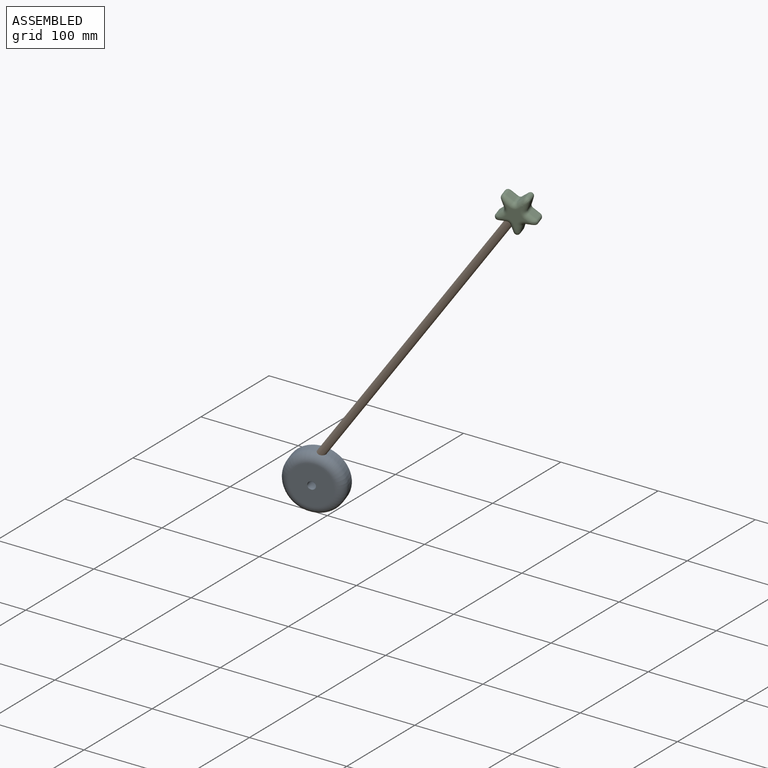
[diagram: assembled view]
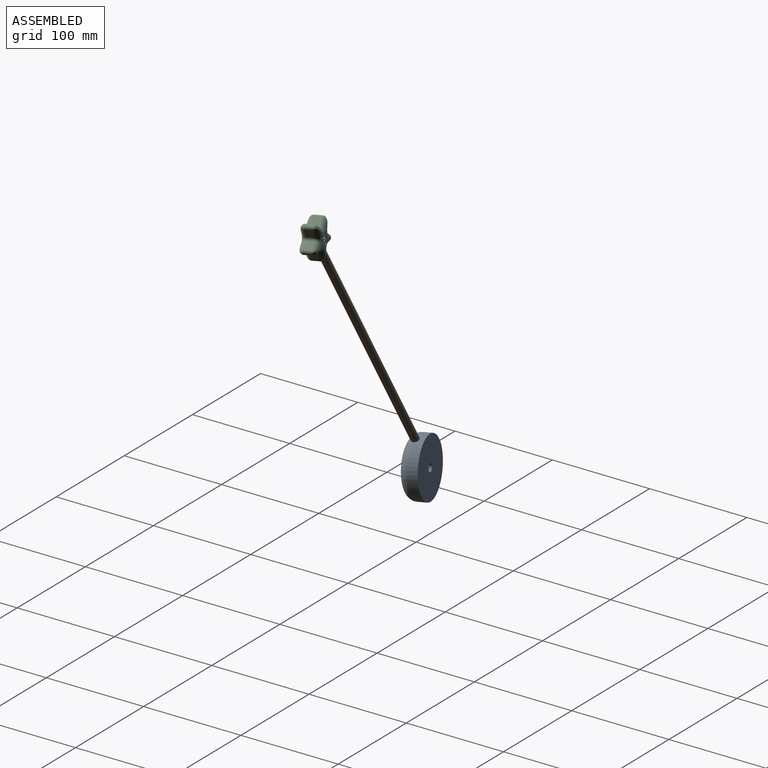
[diagram: assembled view, second angle]
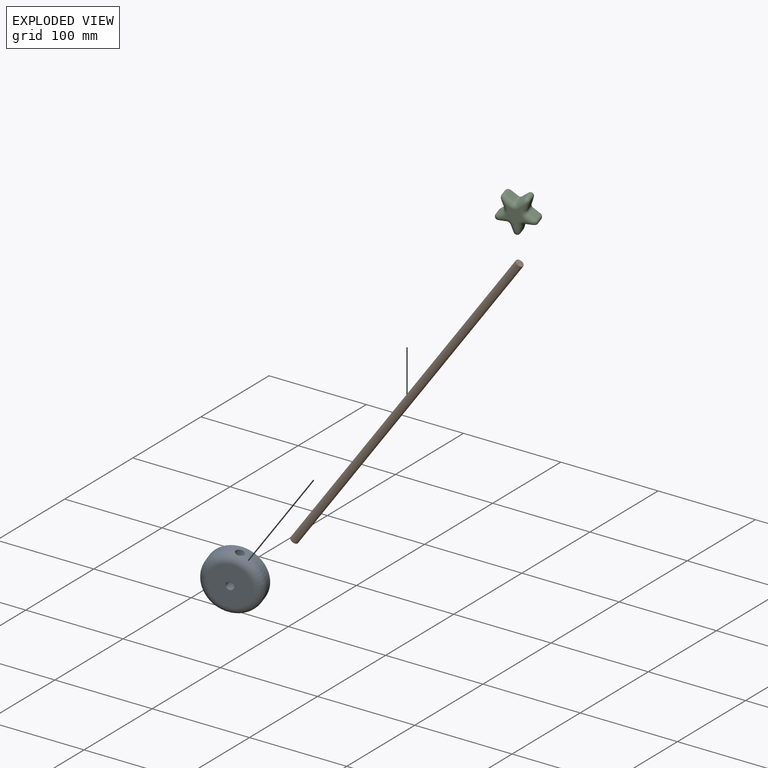
[diagram: exploded view]
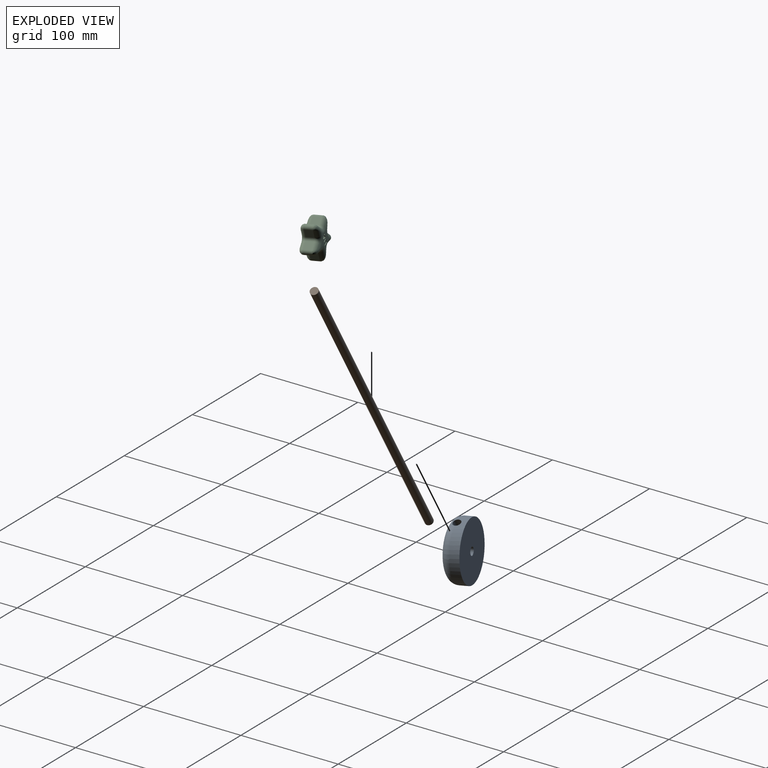
[diagram: exploded view, second angle]
ASSEMBLY  parts=3 mates=2
PART A: 7 faces, bbox 63.9x18x63.9 mm
  f0: cylinder r=29.5mm len=59mm, axis (0,1,0), area 1641mm2, adj f1,f3,f5
  f1: torus R=20.5mm, axis (0,-1,0), area 2302mm2, adj f0,f2,f5
  f2: plane 41x41mm, normal (0,-1,0), area 1270mm2, adj f1,f4
  f3: plane 59x59mm, normal (0,1,0), area 2683.7mm2, adj f0,f4
  f4: cylinder r=4mm len=18mm, axis (0,1,0), area 452.4mm2, adj f2,f3
  f5: cylinder r=4mm len=46.68mm, axis (-1,0,0), area 1130.6mm2, adj f0,f1,f6
  f6: plane 8x8mm, normal (1,0,0), area 50.3mm2, adj f5
PART B: 3 faces, bbox 370x8x8 mm
  f0: cylinder r=4mm len=370mm, axis (-1,0,0), area 9299.1mm2, adj f1,f2
  f1: plane 8x8mm, normal (1,0,0), area 50.3mm2, adj f0
  f2: plane 8x8mm, normal (-1,0,0), area 50.3mm2, adj f0
PART C: 93 faces, bbox 51.5x19.8x48.9 mm
  f0: plane 20.69x19.67mm, normal (0,1,0), area 140.4mm2, adj f46,f47,f48,f49,f50,f51,f54,f55
  f1: cylinder r=3mm len=1.85mm, axis (0,-1,0), area 0.3mm2, adj f4,f29,f65
  f2: cylinder r=3mm len=1.5mm, axis (0,-1,0), area 0.3mm2, adj f5,f29,f65
  f3: cylinder r=3mm len=1.5mm, axis (0,-1,0), area 0.3mm2, adj f5,f48,f65
  f4: plane 8x7.84mm, normal (0.95,0,0.31), area 51.7mm2, adj f1,f15,f17,f31,f50,f65
  f5: plane 8x6.67mm, normal (0.59,0,-0.81), area 51.7mm2, adj f2,f3,f21,f27,f46,f65
  f6: plane 8.24x8mm, normal (0,0,1), area 66mm2, adj f19,f21,f26,f47
  f7: plane 8x7.84mm, normal (0.95,0,0.31), area 66mm2, adj f19,f20,f30,f51
  f8: plane 8x7.84mm, normal (-0.95,0,0.31), area 66mm2, adj f18,f20,f34,f55
  f9: plane 8.24x8mm, normal (0,0,1), area 66mm2, adj f18,f23,f38,f59
  f10: plane 8x6.67mm, normal (-0.59,0,-0.81), area 66mm2, adj f22,f23,f42,f63
  f11: plane 8x7.84mm, normal (-0.95,0,0.31), area 66mm2, adj f22,f24,f43,f62
  f12: plane 8x6.67mm, normal (0.59,0,-0.81), area 66mm2, adj f16,f24,f39,f58
  f13: plane 8x6.67mm, normal (-0.59,0,-0.81), area 66mm2, adj f16,f17,f35,f54
  f14: plane 20.69x19.67mm, normal (0,-1,0), area 164.2mm2, adj f26,f27,f28,f29,f30,f31,f34,f35
  f15: cylinder r=3mm len=1.85mm, axis (0,-1,0), area 0.3mm2, adj f4,f48,f65
  f16: cylinder r=3mm len=8mm, axis (0,-1,0), area 30.2mm2, adj f12,f13,f37,f56
  f17: cylinder r=3mm len=8mm, axis (0,1,0), area 60.3mm2, adj f4,f13,f33,f52
  f18: cylinder r=3mm len=8mm, axis (0,-1,0), area 30.2mm2, adj f8,f9,f36,f57
  f19: cylinder r=3mm len=8mm, axis (0,-1,0), area 30.2mm2, adj f6,f7,f28,f49
  f20: cylinder r=3mm len=8mm, axis (0,1,0), area 60.3mm2, adj f7,f8,f32,f53
  f21: cylinder r=3mm len=8mm, axis (0,1,0), area 60.3mm2, adj f5,f6,f25,f45
  f22: cylinder r=3mm len=8mm, axis (0,-1,0), area 30.2mm2, adj f10,f11,f44,f64
  f23: cylinder r=3mm len=8mm, axis (0,1,0), area 60.3mm2, adj f9,f10,f40,f61
  f24: cylinder r=3mm len=8mm, axis (0,1,0), area 60.3mm2, adj f11,f12,f41,f60
  f25: bspline ~15.39x9.84mm, area 47.5mm2, adj f21,f26,f27
  f26: cylinder r=5mm len=8.24mm, axis (1,0,0), area 47.2mm2, adj f6,f14,f25,f28
  f27: cylinder r=5mm len=9.61mm, axis (-0.81,0,-0.59), area 47.2mm2, adj f5,f14,f25,f29
  f28: torus R=8mm, axis (0,-1,0), area 47.5mm2, adj f14,f19,f26,f30
  f29: torus R=8mm, axis (0,-1,0), area 47.5mm2, adj f1,f2,f14,f27,f31
  f30: cylinder r=5mm len=9.39mm, axis (0.31,0,-0.95), area 47.2mm2, adj f7,f14,f28,f32
  f31: cylinder r=5mm len=9.39mm, axis (0.31,0,-0.95), area 47.2mm2, adj f4,f14,f29,f33
  f32: bspline ~16.18x9.84mm, area 47.5mm2, adj f20,f30,f34
  f33: bspline ~13.09x9.84mm, area 47.5mm2, adj f17,f31,f35
  f34: cylinder r=5mm len=9.39mm, axis (0.31,0,0.95), area 47.2mm2, adj f8,f14,f32,f36
  f35: cylinder r=5mm len=9.61mm, axis (-0.81,0,0.59), area 47.2mm2, adj f13,f14,f33,f37
  f36: torus R=8mm, axis (0,-1,0), area 47.5mm2, adj f14,f18,f34,f38
  f37: torus R=8mm, axis (0,-1,0), area 47.5mm2, adj f14,f16,f35,f39
  f38: cylinder r=5mm len=8.24mm, axis (1,0,0), area 47.2mm2, adj f9,f14,f36,f40
  f39: cylinder r=5mm len=9.61mm, axis (-0.81,0,-0.59), area 47.2mm2, adj f12,f14,f37,f41
  f40: bspline ~15.39x9.84mm, area 47.5mm2, adj f23,f38,f42
  f41: bspline ~13.09x9.84mm, area 47.5mm2, adj f24,f39,f43
  f42: cylinder r=5mm len=9.61mm, axis (-0.81,0,0.59), area 47.2mm2, adj f10,f14,f40,f44
  f43: cylinder r=5mm len=9.39mm, axis (0.31,0,0.95), area 47.2mm2, adj f11,f14,f41,f44
  f44: torus R=8mm, axis (0,-1,0), area 47.5mm2, adj f14,f22,f42,f43
  f45: bspline ~15.39x9.84mm, area 47.5mm2, adj f21,f46,f47
  f46: cylinder r=5mm len=9.61mm, axis (0.81,0,0.59), area 47.2mm2, adj f0,f5,f45,f48
  f47: cylinder r=5mm len=8.24mm, axis (-1,0,0), area 47.2mm2, adj f0,f6,f45,f49
  f48: torus R=8mm, axis (0,-1,0), area 47.5mm2, adj f0,f3,f15,f46,f50
  f49: torus R=8mm, axis (0,-1,0), area 47.5mm2, adj f0,f19,f47,f51
  f50: cylinder r=5mm len=9.39mm, axis (-0.31,0,0.95), area 47.2mm2, adj f0,f4,f48,f52
  f51: cylinder r=5mm len=9.39mm, axis (-0.31,0,0.95), area 47.2mm2, adj f0,f7,f49,f53
  f52: bspline ~13.09x9.84mm, area 47.5mm2, adj f17,f50,f54
  f53: bspline ~16.18x9.84mm, area 47.5mm2, adj f20,f51,f55
  f54: cylinder r=5mm len=9.61mm, axis (0.81,0,-0.59), area 47.2mm2, adj f0,f13,f52,f56
  f55: cylinder r=5mm len=9.39mm, axis (-0.31,0,-0.95), area 47.2mm2, adj f0,f8,f53,f57
  f56: torus R=8mm, axis (0,-1,0), area 47.5mm2, adj f0,f16,f54,f58
  f57: torus R=8mm, axis (0,-1,0), area 47.5mm2, adj f0,f18,f55,f59
  f58: cylinder r=5mm len=9.61mm, axis (0.81,0,0.59), area 47.2mm2, adj f0,f12,f56,f60
  f59: cylinder r=5mm len=8.24mm, axis (-1,0,0), area 47.2mm2, adj f0,f9,f57,f61
  f60: bspline ~13.09x9.84mm, area 47.5mm2, adj f24,f58,f62
  f61: bspline ~15.39x9.84mm, area 47.5mm2, adj f23,f59,f63
  f62: cylinder r=5mm len=9.39mm, axis (-0.31,0,-0.95), area 47.2mm2, adj f0,f11,f60,f64
  f63: cylinder r=5mm len=9.61mm, axis (0.81,0,-0.59), area 47.2mm2, adj f0,f10,f61,f64
  f64: torus R=8mm, axis (0,-1,0), area 47.5mm2, adj f0,f22,f62,f63
  f65: cylinder r=4mm len=17.48mm, axis (0.95,0,-0.31), area 371.8mm2, adj f1,f2,f3,f4,f5,f15,f66
  f66: plane 8x7.61mm, normal (0.95,0,-0.31), area 50.3mm2, adj f65
  f67: extruded ~2x1.78mm, area 3.7mm2, adj f68,f78,f79,f92
  f68: plane 2x1.27mm, normal (0,0,-1), area 2.5mm2, adj f67,f69,f79,f92
  f69: extruded ~2.11x2mm, area 4.4mm2, adj f68,f78,f79,f92
  f70: plane 2x1.16mm, normal (-0.96,0,0.29), area 2.4mm2, adj f0,f71,f77,f79
  f71: plane 2x1.11mm, normal (0,0,1), area 2.2mm2, adj f0,f70,f72,f79
  f72: plane 4.89x2mm, normal (0.94,0,-0.33), area 10.4mm2, adj f0,f71,f73,f79
  f73: plane 2x1.26mm, normal (0,0,-1), area 2.5mm2, adj f0,f72,f74,f79
  f74: plane 4.89x2mm, normal (-0.94,0,-0.33), area 10.4mm2, adj f0,f73,f75,f79
  f75: plane 2x1.11mm, normal (0,0,1), area 2.2mm2, adj f0,f74,f76,f79
  f76: plane 2x1.16mm, normal (0.96,0,0.29), area 2.4mm2, adj f0,f75,f77,f79
  f77: plane 2x1.77mm, normal (0,0,1), area 3.5mm2, adj f0,f70,f76,f79
  f78: extruded ~2x0.33mm, area 0.7mm2, adj f67,f69,f79,f92
  f79: plane 4.89x4.7mm, normal (0,1,0), area 10.8mm2, adj f67,f68,f69,f70,f71,f72,f73,f74
  f80: plane 4.87x2mm, normal (-1,0,0), area 9.7mm2, adj f0,f81,f83,f84
  f81: plane 2x1.03mm, normal (0,0,1), area 2.1mm2, adj f0,f80,f82,f84
  f82: plane 4.87x2mm, normal (1,0,0), area 9.7mm2, adj f0,f81,f83,f84
  f83: plane 2x1.03mm, normal (0,0,-1), area 2.1mm2, adj f0,f80,f82,f84
  f84: plane 4.87x1.03mm, normal (0,1,0), area 5mm2, adj f80,f81,f82,f83
  f85: plane 4.87x2mm, normal (-1,0,0), area 9.7mm2, adj f0,f86,f90,f91
  f86: plane 3.01x2mm, normal (0,0,1), area 6mm2, adj f0,f85,f87,f91
  f87: plane 2x0.85mm, normal (1,0,0), area 1.7mm2, adj f0,f86,f88,f91
  f88: plane 2x1.97mm, normal (0,0,-1), area 3.9mm2, adj f0,f87,f89,f91
  f89: plane 4.01x2mm, normal (1,0,0), area 8mm2, adj f0,f88,f90,f91
  f90: plane 2x1.03mm, normal (0,0,-1), area 2.1mm2, adj f0,f85,f89,f91
  f91: plane 4.87x3.01mm, normal (0,1,0), area 6.7mm2, adj f85,f86,f87,f88,f89,f90
  f92: plane 2.11x1.27mm, normal (0,1,0), area 1.3mm2, adj f67,f68,f69,f78
PLACE A rot(axis=(0.19,-0.96,0.2),56.4deg) t=(430.63,-4.09,-39.93)mm
PLACE B rot(axis=(0.19,-0.96,0.2),56.4deg) t=(430.63,-4.09,-39.93)mm
PLACE C rot(axis=(-0.1,0.99,0.13),108.2deg) t=(596.66,3.5,508.47)mm
MATE fastened B.f0 <-> C.f65  axis (0.57,0.08,0.82) through (622.89,21.37,254.03)mm
MATE fastened B.f0 <-> A.f5  axis (-0.57,-0.08,-0.82) through (411.81,-8.22,-48.42)mm
